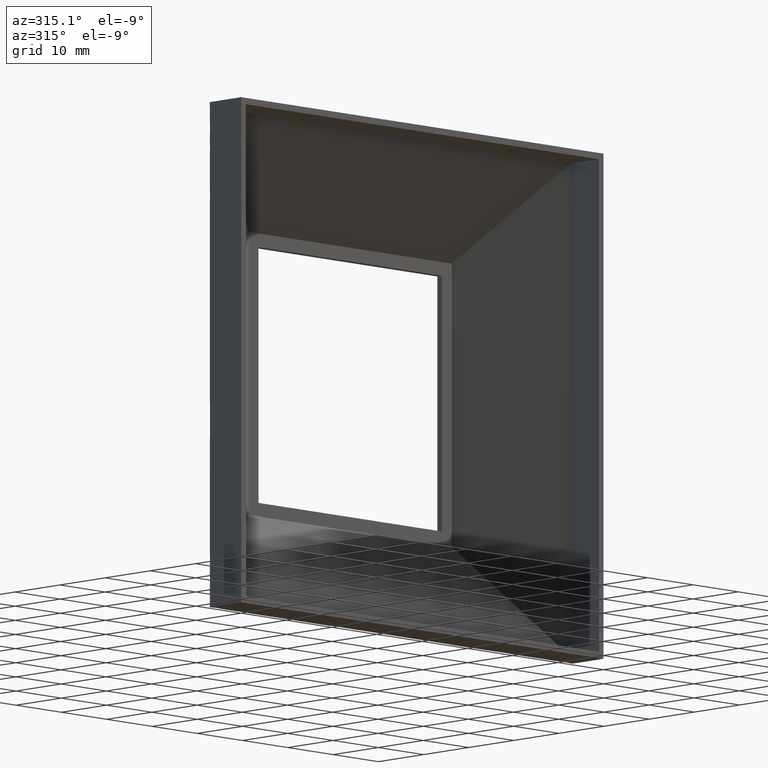
[diagram: clean part render]
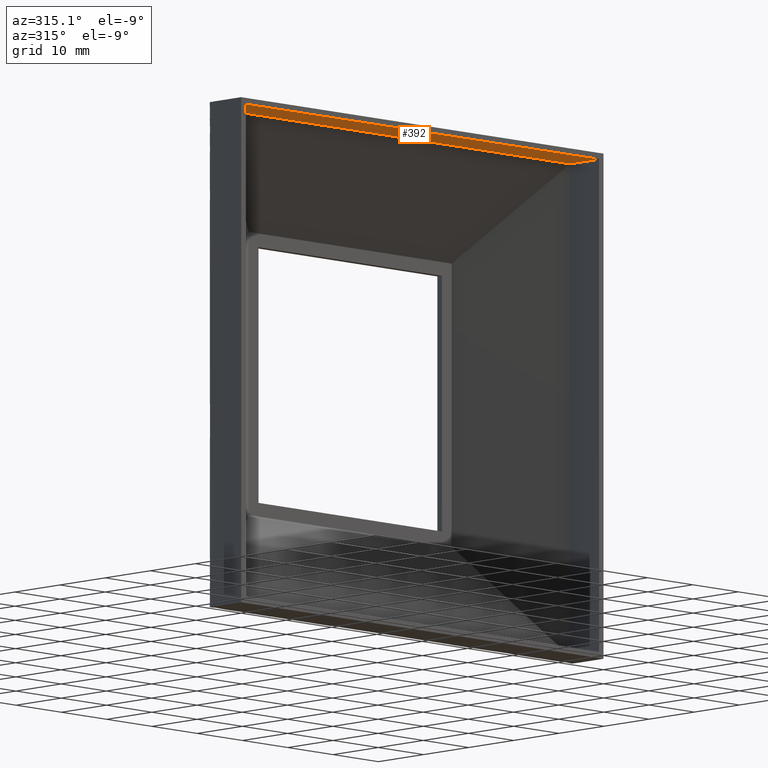
[diagram: same view with one face highlighted and labeled with its STEP entity id]
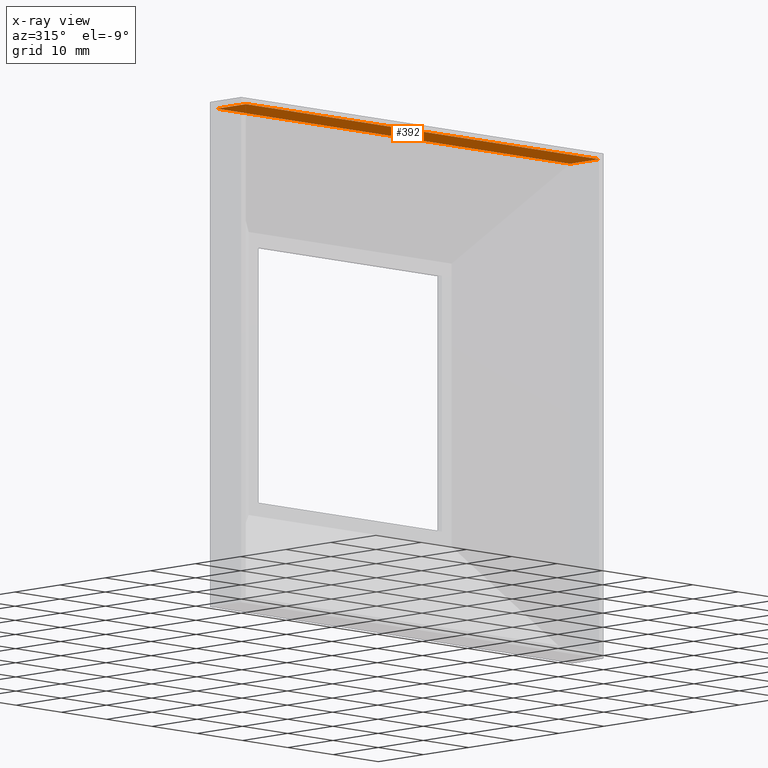
[diagram: x-ray of the same camera — body ghosted, the highlighted face saturated]
A machine part, auxiliary view. The second image highlights one B-rep face of the part: STEP entity #392.
The next image is the same camera in x-ray: the body ghosted, the highlighted face saturated — about 0% of this face is hidden behind the body in this view.
In plain terms, the highlighted planar face has unit normal (0, 0, -1).
Its self-contained STEP definition (entity closure, byte-faithful):
#11 = VECTOR ( 'NONE', #936, 1000.000000000000000 ) ;
#19 = CARTESIAN_POINT ( 'NONE',  ( -40.00000000000001400, 6.422649730810371200, 38.99999999999999300 ) ) ;
#37 = LINE ( 'NONE', #339, #11 ) ;
#59 = EDGE_CURVE ( 'NONE', #555, #210, #856, .T. ) ;
#87 = ORIENTED_EDGE ( 'NONE', *, *, #121, .F. ) ;
#120 = DIRECTION ( 'NONE',  ( 0.0000000000000000000, -1.000000000000000000, 0.0000000000000000000 ) ) ;
#121 = EDGE_CURVE ( 'NONE', #555, #143, #303, .T. ) ;
#143 = VERTEX_POINT ( 'NONE', #1093 ) ;
#168 = DIRECTION ( 'NONE',  ( 1.000000000000000000, 0.0000000000000000000, 0.0000000000000000000 ) ) ;
#210 = VERTEX_POINT ( 'NONE', #712 ) ;
#303 = LINE ( 'NONE', #370, #885 ) ;
#323 = LINE ( 'NONE', #1120, #982 ) ;
#339 = CARTESIAN_POINT ( 'NONE',  ( 38.99999999999998600, 7.000000000000000000, 38.99999999999999300 ) ) ;
#370 = CARTESIAN_POINT ( 'NONE',  ( -39.00000000000001400, 7.000000000000000000, 38.99999999999999300 ) ) ;
#392 = ADVANCED_FACE ( 'NONE', ( #1050 ), #690, .T. ) ;
#529 = AXIS2_PLACEMENT_3D ( 'NONE', #769, #1112, #849 ) ;
#555 = VERTEX_POINT ( 'NONE', #741 ) ;
#574 = ORIENTED_EDGE ( 'NONE', *, *, #909, .F. ) ;
#629 = VECTOR ( 'NONE', #794, 1000.000000000000000 ) ;
#673 = CARTESIAN_POINT ( 'NONE',  ( 38.99999999999998600, 0.0000000000000000000, 38.99999999999999300 ) ) ;
#690 = PLANE ( 'NONE',  #529 ) ;
#712 = CARTESIAN_POINT ( 'NONE',  ( 38.99999999999998600, 6.422649730810371200, 38.99999999999999300 ) ) ;
#741 = CARTESIAN_POINT ( 'NONE',  ( -39.00000000000001400, 6.422649730810371200, 38.99999999999999300 ) ) ;
#767 = ORIENTED_EDGE ( 'NONE', *, *, #59, .T. ) ;
#769 = CARTESIAN_POINT ( 'NONE',  ( -40.00000000000001400, 7.000000000000000000, 38.99999999999999300 ) ) ;
#794 = DIRECTION ( 'NONE',  ( 1.000000000000000000, -0.0000000000000000000, -0.0000000000000000000 ) ) ;
#849 = DIRECTION ( 'NONE',  ( -1.000000000000000000, 0.0000000000000000000, -0.0000000000000000000 ) ) ;
#856 = LINE ( 'NONE', #19, #629 ) ;
#865 = ORIENTED_EDGE ( 'NONE', *, *, #938, .T. ) ;
#885 = VECTOR ( 'NONE', #120, 1000.000000000000000 ) ;
#909 = EDGE_CURVE ( 'NONE', #143, #1089, #323, .T. ) ;
#936 = DIRECTION ( 'NONE',  ( 0.0000000000000000000, -1.000000000000000000, 0.0000000000000000000 ) ) ;
#938 = EDGE_CURVE ( 'NONE', #210, #1089, #37, .T. ) ;
#982 = VECTOR ( 'NONE', #168, 1000.000000000000000 ) ;
#1050 = FACE_OUTER_BOUND ( 'NONE', #1099, .T. ) ;
#1089 = VERTEX_POINT ( 'NONE', #673 ) ;
#1093 = CARTESIAN_POINT ( 'NONE',  ( -39.00000000000001400, 0.0000000000000000000, 38.99999999999999300 ) ) ;
#1099 = EDGE_LOOP ( 'NONE', ( #574, #87, #767, #865 ) ) ;
#1112 = DIRECTION ( 'NONE',  ( 0.0000000000000000000, 0.0000000000000000000, -1.000000000000000000 ) ) ;
#1120 = CARTESIAN_POINT ( 'NONE',  ( 0.0000000000000000000, -0.0000000000000000000, 38.99999999999999300 ) ) ;